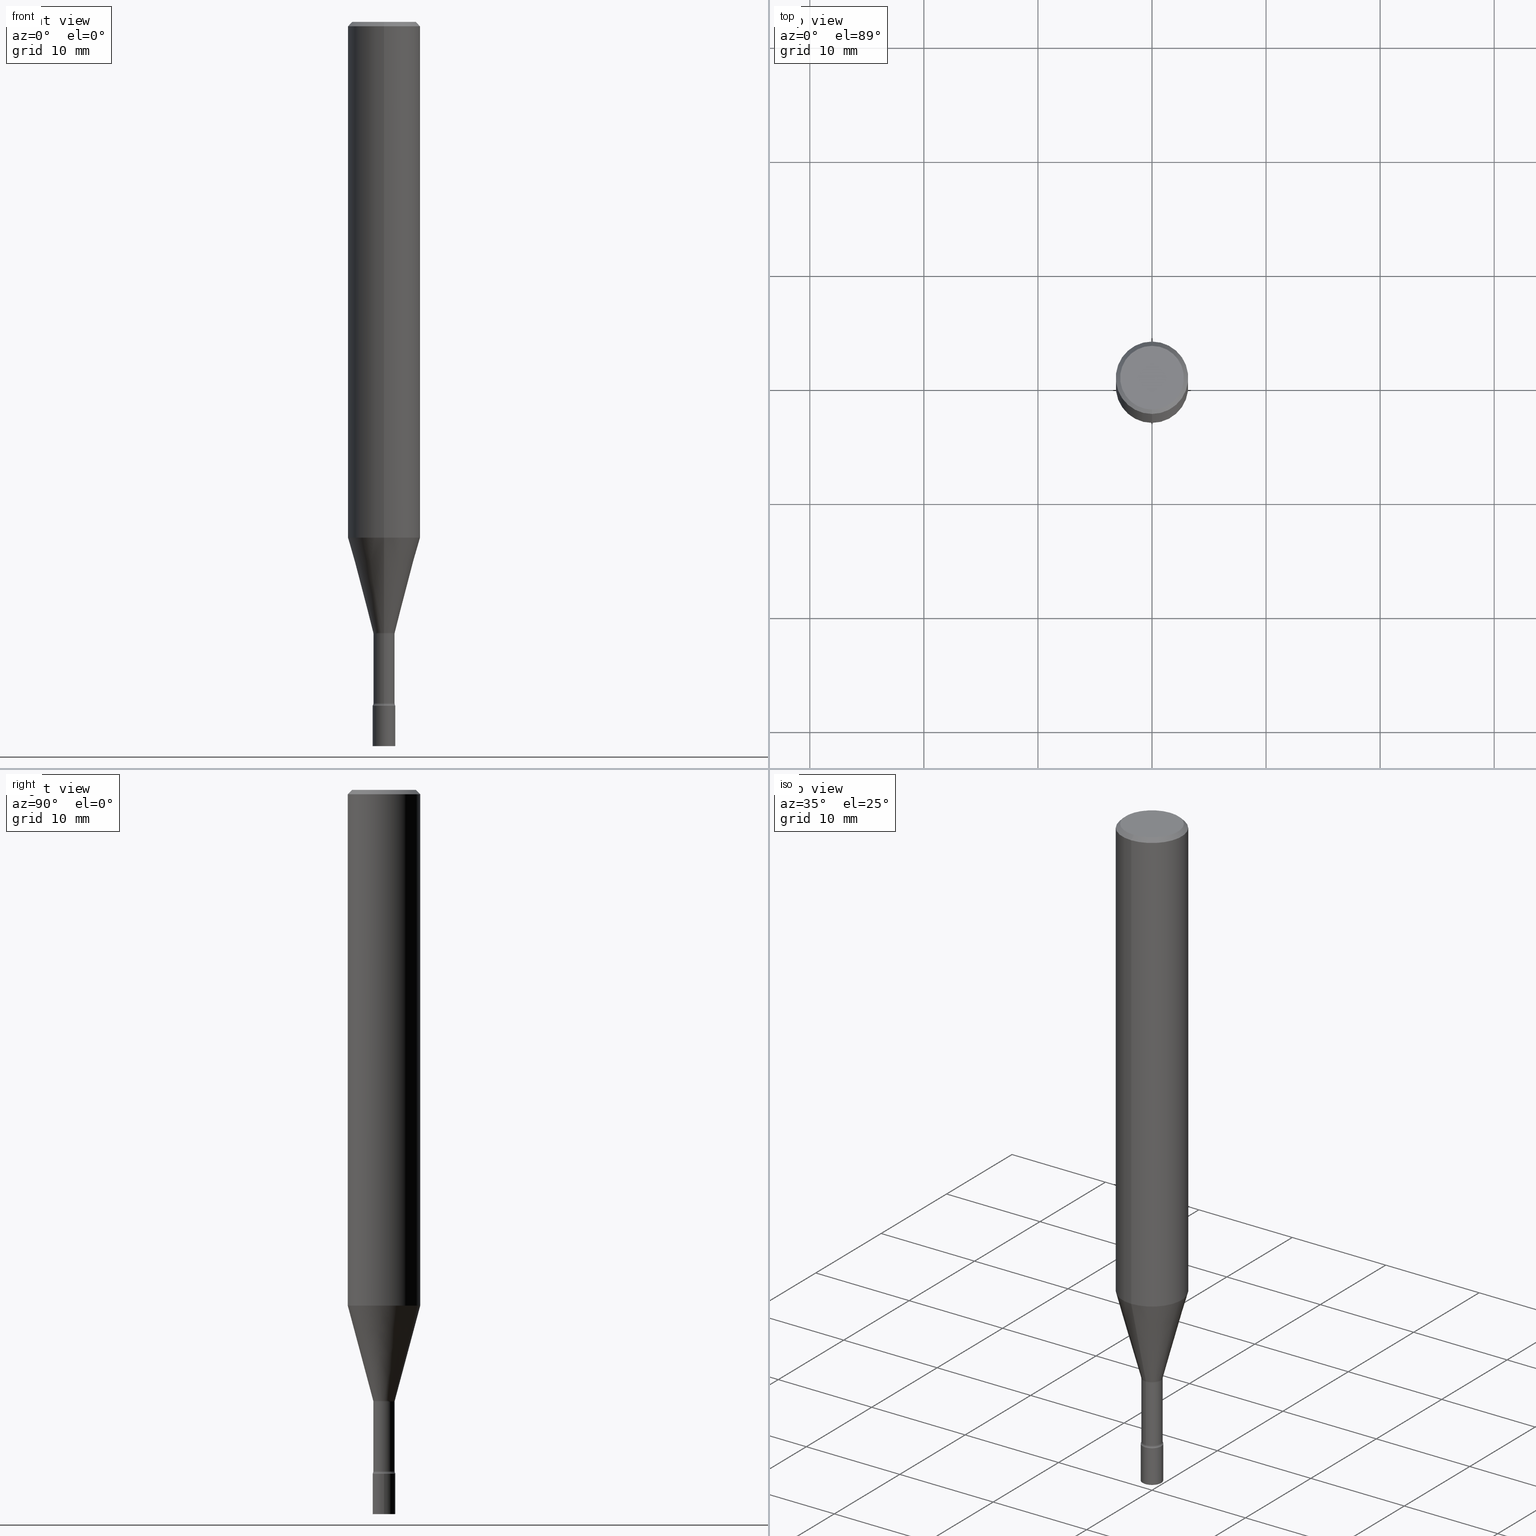
[diagram: canonical four-view strip — front | top / right | iso, engineering-drawing reading convention]
A machine part, canonical four-view strip (front | top / right | iso — engineering-drawing reading convention). The complete STEP part file that produces these views, byte-faithful:
ISO-10303-21;
HEADER;
FILE_DESCRIPTION (( 'STEP AP203' ),
    '1' );
FILE_NAME ('05290.STEP',
    '2024-03-08T23:11:32',
    ( '' ),
    ( '' ),
    'SwSTEP 2.0',
    'SolidWorks 2023',
    '' );
FILE_SCHEMA (( 'CONFIG_CONTROL_DESIGN' ));
ENDSEC;

DATA;
#1 = CARTESIAN_POINT ( 'NONE',  ( -8.061085147381547495E-16, -0.1100000000000000283, 3.706293315689109657E-16 ) ) ;
#2 = ORIENTED_EDGE ( 'NONE', *, *, #440, .T. ) ;
#3 = CARTESIAN_POINT ( 'NONE',  ( 6.113672015462842613E-29, -8.728703347107864943E-15, -2.500000000000000000 ) ) ;
#4 = CIRCLE ( 'NONE', #475, 0.1250000000000000000 ) ;
#5 = DIRECTION ( 'NONE',  ( 1.000000000000000000, -6.982962677686265922E-15, 4.876176775795935793E-29 ) ) ;
#6 = FACE_OUTER_BOUND ( 'NONE', #364, .T. ) ;
#7 = FACE_OUTER_BOUND ( 'NONE', #136, .T. ) ;
#8 = AXIS2_PLACEMENT_3D ( 'NONE', #391, #24, #192 ) ;
#9 = LENGTH_MEASURE_WITH_UNIT ( LENGTH_MEASURE( 0.02539999999999999897 ), #216 );
#10 = APPROVAL ( #389, 'UNSPECIFIED' ) ;
#11 = DATE_AND_TIME ( #457, #107 ) ;
#12 = DIRECTION ( 'NONE',  ( -2.445468806185136597E-29, 3.491481338843145583E-15, 1.000000000000000000 ) ) ;
#13 = APPLICATION_CONTEXT ( 'configuration controlled 3d designs of mechanical parts and assemblies' ) ;
#14 = DIRECTION ( 'NONE',  ( -2.445349781310830776E-29, 3.491651789237625811E-15, 1.000000000000000000 ) ) ;
#15 = ORIENTED_EDGE ( 'NONE', *, *, #284, .F. ) ;
#16 = DATE_AND_TIME ( #55, #159 ) ;
#17 = DIRECTION ( 'NONE',  ( 1.000000000000000000, -6.982962677686266711E-15, 0.000000000000000000 ) ) ;
#18 = EDGE_CURVE ( 'NONE', #171, #92, #329, .T. ) ;
#19 = CONICAL_SURFACE ( 'NONE', #49, 0.03721111260566398182, 0.2617993877991500740 ) ;
#20 = APPROVAL_DATE_TIME ( #11, #156 ) ;
#21 = AXIS2_PLACEMENT_3D ( 'NONE', #476, #283, #436 ) ;
#22 = CARTESIAN_POINT ( 'NONE',  ( 2.691180611691956727E-16, 0.03669999999999181556, -2.351939137763241483 ) ) ;
#23 = ORIENTED_EDGE ( 'NONE', *, *, #340, .F. ) ;
#24 = DIRECTION ( 'NONE',  ( -2.445349781310831056E-29, 3.491651789237626205E-15, 1.000000000000000000 ) ) ;
#25 = ORIENTED_EDGE ( 'NONE', *, *, #47, .F. ) ;
#26 = MANIFOLD_SOLID_BREP ( 'Body-Move/Copy2[1]', #316 ) ;
#27 = DIRECTION ( 'NONE',  ( -6.982962677686265922E-15, -1.000000000000000000, 3.491651789237625811E-15 ) ) ;
#28 = CLOSED_SHELL ( 'NONE', ( #410, #151, #29, #72, #125, #109, #89, #46, #505, #166, #465, #420, #190, #260 ) ) ;
#29 = ADVANCED_FACE ( 'NONE', ( #205 ), #158, .F. ) ;
#30 = APPROVAL_PERSON_ORGANIZATION ( #315, #156, #98 ) ;
#31 = EDGE_LOOP ( 'NONE', ( #378, #494, #344, #119 ) ) ;
#32 = DIRECTION ( 'NONE',  ( -2.445349781310831056E-29, 3.491651789237626205E-15, 1.000000000000000000 ) ) ;
#33 = DIRECTION ( 'NONE',  ( -2.445349781310831056E-29, 3.491651789237626205E-15, 1.000000000000000000 ) ) ;
#34 = CARTESIAN_POINT ( 'NONE',  ( 4.353847260578623732E-29, -6.216746043307386729E-15, -1.780459913691669227 ) ) ;
#35 = EDGE_CURVE ( 'NONE', #282, #53, #41, .T. ) ;
#36 = DIRECTION ( 'NONE',  ( -2.445349781310831056E-29, 3.491651789237626205E-15, 1.000000000000000000 ) ) ;
#37 = CIRCLE ( 'NONE', #366, 0.01500000000000002720 ) ;
#38 = CC_DESIGN_APPROVAL ( #128, ( #406 ) ) ;
#39 = DIRECTION ( 'NONE',  ( -6.982962677686265922E-15, -1.000000000000000000, 0.000000000000000000 ) ) ;
#40 = DIRECTION ( 'NONE',  ( -2.445468806185136597E-29, 3.491481338843145583E-15, 1.000000000000000000 ) ) ;
#41 = LINE ( 'NONE', #338, #296 ) ;
#42 = LINE ( 'NONE', #290, #318 ) ;
#43 = CIRCLE ( 'NONE', #346, 0.01500000000000000291 ) ;
#44 = DIRECTION ( 'NONE',  ( -2.445349781310831056E-29, 3.491651789237626205E-15, 1.000000000000000000 ) ) ;
#45 = ORIENTED_EDGE ( 'NONE', *, *, #170, .F. ) ;
#46 = ADVANCED_FACE ( 'NONE', ( #7 ), #214, .T. ) ;
#47 = EDGE_CURVE ( 'NONE', #358, #518, #460, .T. ) ;
#48 = DIRECTION ( 'NONE',  ( -2.445349781310831056E-29, 3.491651789237626205E-15, 1.000000000000000000 ) ) ;
#49 = AXIS2_PLACEMENT_3D ( 'NONE', #496, #48, #502 ) ;
#50 = ORIENTED_EDGE ( 'NONE', *, *, #442, .T. ) ;
#51 = AXIS2_PLACEMENT_3D ( 'NONE', #213, #211, #204 ) ;
#52 = PERSON_AND_ORGANIZATION ( #212, #85 ) ;
#53 = VERTEX_POINT ( 'NONE', #99 ) ;
#54 = ORIENTED_EDGE ( 'NONE', *, *, #115, .F. ) ;
#55 = CALENDAR_DATE ( 2024, 8, 3 ) ;
#56 = CARTESIAN_POINT ( 'NONE',  ( 6.113672015462842613E-29, -8.728703347107864943E-15, -2.500000000000000000 ) ) ;
#57 = CC_DESIGN_DATE_AND_TIME_ASSIGNMENT ( #306, #263, ( #333 ) ) ;
#58 = EDGE_LOOP ( 'NONE', ( #507, #148, #178, #375 ) ) ;
#59 = ORIENTED_EDGE ( 'NONE', *, *, #115, .T. ) ;
#60 = VECTOR ( 'NONE', #352, 39.37007874015748854 ) ;
#61 = FACE_OUTER_BOUND ( 'NONE', #317, .T. ) ;
#62 = DIRECTION ( 'NONE',  ( -6.982962677686265922E-15, -1.000000000000000000, 0.000000000000000000 ) ) ;
#63 = MECHANICAL_CONTEXT ( 'NONE', #13, 'mechanical' ) ;
#64 = LINE ( 'NONE', #483, #60 ) ;
#65 = PRODUCT_RELATED_PRODUCT_CATEGORY ( 'detail', '', ( #191 ) ) ;
#66 = DIRECTION ( 'NONE',  ( 2.438088387897960049E-29, -3.491481338843145188E-15, -1.000000000000000000 ) ) ;
#67 = CARTESIAN_POINT ( 'NONE',  ( -2.726846925635909341E-16, -0.03905000000000823784, -2.359999999999999876 ) ) ;
#68 = AXIS2_PLACEMENT_3D ( 'NONE', #326, #122, #376 ) ;
#69 = DIRECTION ( 'NONE',  ( -6.982962677686267499E-15, -1.000000000000000000, 0.000000000000000000 ) ) ;
#70 = CARTESIAN_POINT ( 'NONE',  ( 0.000000000000000000, 0.000000000000000000, 0.000000000000000000 ) ) ;
#71 = DIRECTION ( 'NONE',  ( 4.937700262164543309E-15, 0.7071067811865444641, -0.7071067811865505703 ) ) ;
#72 = ADVANCED_FACE ( 'NONE', ( #226 ), #473, .T. ) ;
#73 = DIRECTION ( 'NONE',  ( -2.445349781310831056E-29, 3.491651789237626205E-15, 1.000000000000000000 ) ) ;
#74 = DIRECTION ( 'NONE',  ( -6.982962677686265922E-15, -1.000000000000000000, 3.491651789237626205E-15 ) ) ;
#75 = AXIS2_PLACEMENT_3D ( 'NONE', #429, #314, #62 ) ;
#76 = CONICAL_SURFACE ( 'NONE', #153, 0.1250000000000000000, 0.7853981633974473908 ) ;
#77 = FACE_OUTER_BOUND ( 'NONE', #515, .T. ) ;
#78 = CARTESIAN_POINT ( 'NONE',  ( 0.03905000000000000138, -9.001388039671514055E-15, -2.500000000000000000 ) ) ;
#79 = EDGE_CURVE ( 'NONE', #385, #282, #438, .T. ) ;
#80 = PLANE ( 'NONE',  #279 ) ;
#81 = CYLINDRICAL_SURFACE ( 'NONE', #217, 0.03670000000000001733 ) ;
#82 = DIRECTION ( 'NONE',  ( 6.982962677686265922E-15, 1.000000000000000000, -3.500180241882337261E-15 ) ) ;
#83 = CARTESIAN_POINT ( 'NONE',  ( 5.751593795445973878E-29, -8.211751609595195115E-15, -2.351939137763241483 ) ) ;
#84 = AXIS2_PLACEMENT_3D ( 'NONE', #264, #492, #416 ) ;
#85 = ORGANIZATION ( 'UNSPECIFIED', 'UNSPECIFIED', '' ) ;
#86 = PRODUCT_DEFINITION_FORMATION_WITH_SPECIFIED_SOURCE ( 'ANY', '', #191, .NOT_KNOWN. ) ;
#87 = APPLICATION_PROTOCOL_DEFINITION ( 'international standard', 'config_control_design', 1994, #13 ) ;
#88 = CARTESIAN_POINT ( 'NONE',  ( 5.155023538228511633E-29, -7.360724955743956693E-15, -2.108092501787273143 ) ) ;
#89 = ADVANCED_FACE ( 'NONE', ( #384 ), #19, .T. ) ;
#90 = CARTESIAN_POINT ( 'NONE',  ( 5.751313856185726138E-29, -8.212152498549022381E-15, -2.351939137763241483 ) ) ;
#91 = DIRECTION ( 'NONE',  ( -2.445468806185136597E-29, 3.491481338843145583E-15, 1.000000000000000000 ) ) ;
#92 = VERTEX_POINT ( 'NONE', #267 ) ;
#93 = PERSON_AND_ORGANIZATION_ROLE ( 'design_supplier' ) ;
#94 = FACE_OUTER_BOUND ( 'NONE', #304, .T. ) ;
#95 = VERTEX_POINT ( 'NONE', #22 ) ;
#96 = CIRCLE ( 'NONE', #131, 0.03905000000000000138 ) ;
#97 = CC_DESIGN_SECURITY_CLASSIFICATION ( #406, ( #86 ) ) ;
#98 = APPROVAL_ROLE ( '' ) ;
#99 = CARTESIAN_POINT ( 'NONE',  ( 0.03905000000000000138, -8.512580652233472546E-15, -2.359999999999999876 ) ) ;
#100 = VERTEX_POINT ( 'NONE', #135 ) ;
#101 = PERSON_AND_ORGANIZATION_ROLE ( 'design_owner' ) ;
#102 = EDGE_CURVE ( 'NONE', #358, #95, #286, .T. ) ;
#103 = DIRECTION ( 'NONE',  ( -6.982962677686265922E-15, -1.000000000000000000, 3.491651789237626205E-15 ) ) ;
#104 = ORIENTED_EDGE ( 'NONE', *, *, #311, .T. ) ;
#105 = PRODUCT_DEFINITION_SHAPE ( 'NONE', 'NONE',  #333 ) ;
#106 = AXIS2_PLACEMENT_3D ( 'NONE', #140, #459, #464 ) ;
#107 = LOCAL_TIME ( 18, 11, 32.00000000000000000, #380 ) ;
#108 = ORIENTED_EDGE ( 'NONE', *, *, #246, .F. ) ;
#109 = ADVANCED_FACE ( 'NONE', ( #449 ), #234, .T. ) ;
#110 = LINE ( 'NONE', #480, #308 ) ;
#111 = CARTESIAN_POINT ( 'NONE',  ( -3.610191704363283331E-16, -0.05170000000000738588, -2.111974787463811065 ) ) ;
#112 = CYLINDRICAL_SURFACE ( 'NONE', #404, 0.03670000000000001733 ) ;
#113 = ORIENTED_EDGE ( 'NONE', *, *, #486, .F. ) ;
#114 = VECTOR ( 'NONE', #120, 39.37007874015748143 ) ;
#115 = EDGE_CURVE ( 'NONE', #171, #395, #466, .T. ) ;
#116 = AXIS2_PLACEMENT_3D ( 'NONE', #419, #386, #495 ) ;
#117 = DIRECTION ( 'NONE',  ( -6.982962677686265922E-15, -1.000000000000000000, 4.370956789862821150E-15 ) ) ;
#118 = LINE ( 'NONE', #516, #114 ) ;
#119 = ORIENTED_EDGE ( 'NONE', *, *, #359, .F. ) ;
#120 = DIRECTION ( 'NONE',  ( -2.445468806185136877E-29, 3.491481338843145188E-15, 1.000000000000000000 ) ) ;
#121 = CARTESIAN_POINT ( 'NONE',  ( -0.03905000000000000138, -8.206832715074525647E-15, -2.500000000000000000 ) ) ;
#122 = DIRECTION ( 'NONE',  ( -2.445349781310831056E-29, 3.491651789237626205E-15, 1.000000000000000000 ) ) ;
#123 = DIRECTION ( 'NONE',  ( -2.445468806185136597E-29, 3.491481338843145583E-15, 1.000000000000000000 ) ) ;
#124 = DIRECTION ( 'NONE',  ( -6.982962677686265922E-15, -1.000000000000000000, 0.000000000000000000 ) ) ;
#125 = ADVANCED_FACE ( 'NONE', ( #61 ), #433, .T. ) ;
#126 = DIRECTION ( 'NONE',  ( 1.000000000000000000, -7.105427357601001070E-15, 4.926317595957382719E-29 ) ) ;
#127 = PLANE ( 'NONE',  #372 ) ;
#128 = APPROVAL ( #345, 'UNSPECIFIED' ) ;
#129 = DIRECTION ( 'NONE',  ( -6.982962677686265922E-15, -1.000000000000000000, 3.491651789237626205E-15 ) ) ;
#130 = AXIS2_PLACEMENT_3D ( 'NONE', #325, #194, #357 ) ;
#131 = AXIS2_PLACEMENT_3D ( 'NONE', #248, #350, #149 ) ;
#132 = VERTEX_POINT ( 'NONE', #353 ) ;
#133 = CARTESIAN_POINT ( 'NONE',  ( 0.000000000000000000, 0.000000000000000000, 0.000000000000000000 ) ) ;
#134 = DIRECTION ( 'NONE',  ( -2.445349781310831056E-29, 3.491651789237626205E-15, 1.000000000000000000 ) ) ;
#135 = CARTESIAN_POINT ( 'NONE',  ( 8.881784197001688169E-16, 0.1249999999999999306, -0.01500000000000045047 ) ) ;
#136 = EDGE_LOOP ( 'NONE', ( #269, #176, #2, #302 ) ) ;
#137 = CALENDAR_DATE ( 2024, 8, 3 ) ;
#138 = ORIENTED_EDGE ( 'NONE', *, *, #401, .T. ) ;
#139 = PERSON_AND_ORGANIZATION ( #212, #85 ) ;
#140 = CARTESIAN_POINT ( 'NONE',  ( 5.771025483893561158E-29, -8.240298222600798413E-15, -2.359999999999999876 ) ) ;
#141 = AXIS2_PLACEMENT_3D ( 'NONE', #511, #294, #124 ) ;
#142 = ORIENTED_EDGE ( 'NONE', *, *, #35, .F. ) ;
#143 = AXIS2_PLACEMENT_3D ( 'NONE', #415, #40, #257 ) ;
#144 = CALENDAR_DATE ( 2024, 8, 3 ) ;
#145 = ORIENTED_EDGE ( 'NONE', *, *, #440, .F. ) ;
#146 = CALENDAR_DATE ( 2024, 8, 3 ) ;
#147 = DIRECTION ( 'NONE',  ( -6.982962677686265133E-15, -1.000000000000000000, 0.000000000000000000 ) ) ;
#148 = ORIENTED_EDGE ( 'NONE', *, *, #102, .F. ) ;
#149 = DIRECTION ( 'NONE',  ( -6.982962677686265133E-15, -1.000000000000000000, 0.000000000000000000 ) ) ;
#150 = APPROVAL_DATE_TIME ( #16, #10 ) ;
#151 = ADVANCED_FACE ( 'NONE', ( #471 ), #112, .T. ) ;
#152 = ORIENTED_EDGE ( 'NONE', *, *, #250, .F. ) ;
#153 = AXIS2_PLACEMENT_3D ( 'NONE', #485, #445, #82 ) ;
#154 = DIRECTION ( 'NONE',  ( -6.982962677686265922E-15, -1.000000000000000000, 3.500180241882337261E-15 ) ) ;
#155 = DIRECTION ( 'NONE',  ( -4.851104656540959542E-15, -0.7071067811865493491, -0.7071067811865456854 ) ) ;
#156 = APPROVAL ( #504, 'UNSPECIFIED' ) ;
#157 = FACE_OUTER_BOUND ( 'NONE', #239, .T. ) ;
#158 = TOROIDAL_SURFACE ( 'NONE', #307, 0.05170000000000003065, 0.01500000000000000291 ) ;
#159 = LOCAL_TIME ( 18, 11, 32.00000000000000000, #259 ) ;
#160 = LINE ( 'NONE', #517, #397 ) ;
#161 = ORIENTED_EDGE ( 'NONE', *, *, #209, .F. ) ;
#162 = ORIENTED_EDGE ( 'NONE', *, *, #514, .F. ) ;
#163 = CARTESIAN_POINT ( 'NONE',  ( 5.164517084658619251E-29, -7.374280545472771728E-15, -2.111974787463811065 ) ) ;
#164 = DIRECTION ( 'NONE',  ( -2.445349781310831056E-29, 3.491651789237626205E-15, 1.000000000000000000 ) ) ;
#165 = DIRECTION ( 'NONE',  ( -2.445349781310830776E-29, 3.491651789237625811E-15, 1.000000000000000000 ) ) ;
#166 = ADVANCED_FACE ( 'NONE', ( #198 ), #80, .F. ) ;
#167 = DIRECTION ( 'NONE',  ( -2.445468806185136597E-29, 3.491481338843145583E-15, 1.000000000000000000 ) ) ;
#168 = AXIS2_PLACEMENT_3D ( 'NONE', #245, #73, #39 ) ;
#169 = CYLINDRICAL_SURFACE ( 'NONE', #272, 0.03905000000000000138 ) ;
#170 = EDGE_CURVE ( 'NONE', #358, #193, #43, .T. ) ;
#171 = VERTEX_POINT ( 'NONE', #478 ) ;
#172 =( NAMED_UNIT ( * ) SI_UNIT ( $, .STERADIAN. ) SOLID_ANGLE_UNIT ( ) );
#173 = VECTOR ( 'NONE', #393, 39.37007874015748143 ) ;
#174 = TOROIDAL_SURFACE ( 'NONE', #509, 0.05170000000000000984, 0.01500000000000002720 ) ;
#175 = LOCAL_TIME ( 18, 11, 32.00000000000000000, #343 ) ;
#176 = ORIENTED_EDGE ( 'NONE', *, *, #359, .T. ) ;
#177 = ORIENTED_EDGE ( 'NONE', *, *, #182, .T. ) ;
#178 = ORIENTED_EDGE ( 'NONE', *, *, #170, .T. ) ;
#179 = SECURITY_CLASSIFICATION_LEVEL ( 'unclassified' ) ;
#180 = DIRECTION ( 'NONE',  ( 1.000000000000000000, -6.982962677686266711E-15, 4.876176775795935232E-29 ) ) ;
#181 = VERTEX_POINT ( 'NONE', #490 ) ;
#182 = EDGE_CURVE ( 'NONE', #385, #305, #118, .T. ) ;
#183 = DATE_TIME_ROLE ( 'classification_date' ) ;
#184 = CIRCLE ( 'NONE', #75, 0.03721111260566398182 ) ;
#185 = VERTEX_POINT ( 'NONE', #199 ) ;
#186 = CIRCLE ( 'NONE', #168, 0.03670000000000000345 ) ;
#187 = SHAPE_DEFINITION_REPRESENTATION ( #105, #253 ) ;
#188 = LINE ( 'NONE', #501, #405 ) ;
#189 = EDGE_LOOP ( 'NONE', ( #54, #262, #396, #349 ) ) ;
#190 = ADVANCED_FACE ( 'NONE', ( #295 ), #81, .T. ) ;
#191 = PRODUCT ( '05290', '05290', '', ( #63 ) ) ;
#192 = DIRECTION ( 'NONE',  ( -6.982962677686265922E-15, -1.000000000000000000, 3.491651789237626205E-15 ) ) ;
#193 = VERTEX_POINT ( 'NONE', #67 ) ;
#194 = DIRECTION ( 'NONE',  ( -2.445349781310831056E-29, 3.491651789237626205E-15, 1.000000000000000000 ) ) ;
#195 = VECTOR ( 'NONE', #14, 39.37007874015748143 ) ;
#196 =( GEOMETRIC_REPRESENTATION_CONTEXT ( 3 ) GLOBAL_UNCERTAINTY_ASSIGNED_CONTEXT ( ( #327 ) ) GLOBAL_UNIT_ASSIGNED_CONTEXT ( ( #289, #413, #172 ) ) REPRESENTATION_CONTEXT ( 'NONE', 'WORKASPACE' ) );
#197 = EDGE_LOOP ( 'NONE', ( #388, #355 ) ) ;
#198 = FACE_OUTER_BOUND ( 'NONE', #197, .T. ) ;
#199 = CARTESIAN_POINT ( 'NONE',  ( 8.204981146281365554E-16, 0.1100000000000000283, -3.975340620633669494E-16 ) ) ;
#200 = DIRECTION ( 'NONE',  ( -6.982962677686265922E-15, -1.000000000000000000, 4.370956789862821150E-15 ) ) ;
#201 = AXIS2_PLACEMENT_3D ( 'NONE', #281, #66, #470 ) ;
#202 = EDGE_CURVE ( 'NONE', #92, #171, #184, .T. ) ;
#203 = FACE_OUTER_BOUND ( 'NONE', #58, .T. ) ;
#204 = DIRECTION ( 'NONE',  ( -6.982962677686265922E-15, -1.000000000000000000, 3.491651789237625811E-15 ) ) ;
#205 = FACE_OUTER_BOUND ( 'NONE', #233, .T. ) ;
#206 = AXIS2_PLACEMENT_3D ( 'NONE', #513, #362, #276 ) ;
#207 = DESIGN_CONTEXT ( 'detailed design', #437, 'design' ) ;
#208 = ORIENTED_EDGE ( 'NONE', *, *, #182, .F. ) ;
#209 = EDGE_CURVE ( 'NONE', #95, #395, #409, .T. ) ;
#210 = DIMENSIONAL_EXPONENTS ( 1.000000000000000000, 0.000000000000000000, 0.000000000000000000, 0.000000000000000000, 0.000000000000000000, 0.000000000000000000, 0.000000000000000000 ) ;
#211 = DIRECTION ( 'NONE',  ( -2.445349781310831056E-29, 3.491651789237625811E-15, 1.000000000000000000 ) ) ;
#212 = PERSON ( 'UNSPECIFIED', 'UNSPECIFIED', 'UNSPECIFIED', ('UNSPECIFIED'), ('UNSPECIFIED'), ('UNSPECIFIED') ) ;
#213 = CARTESIAN_POINT ( 'NONE',  ( 2.726846925637064037E-16, 0.03904999999999175797, -2.359999999999999876 ) ) ;
#214 = CYLINDRICAL_SURFACE ( 'NONE', #243, 0.1250000000000000000 ) ;
#215 = ORIENTED_EDGE ( 'NONE', *, *, #394, .F. ) ;
#216 =( LENGTH_UNIT ( ) NAMED_UNIT ( * ) SI_UNIT ( $, .METRE. ) );
#217 = AXIS2_PLACEMENT_3D ( 'NONE', #133, #33, #360 ) ;
#218 = AXIS2_PLACEMENT_3D ( 'NONE', #90, #134, #411 ) ;
#219 = ORIENTED_EDGE ( 'NONE', *, *, #401, .F. ) ;
#220 = COORDINATED_UNIVERSAL_TIME_OFFSET ( 5, 0, .BEHIND. ) ;
#221 = EDGE_LOOP ( 'NONE', ( #15, #417 ) ) ;
#222 = PERSON_AND_ORGANIZATION_ROLE ( 'creator' ) ;
#223 = CARTESIAN_POINT ( 'NONE',  ( -2.562747302710860916E-16, -0.03670000000000001733, 1.281436206650209465E-16 ) ) ;
#224 = ORIENTED_EDGE ( 'NONE', *, *, #250, .T. ) ;
#225 = PERSON_AND_ORGANIZATION ( #212, #85 ) ;
#226 = FACE_OUTER_BOUND ( 'NONE', #297, .T. ) ;
#227 = EDGE_LOOP ( 'NONE', ( #161, #450, #508, #339 ) ) ;
#228 = CC_DESIGN_PERSON_AND_ORGANIZATION_ASSIGNMENT ( #139, #101, ( #191 ) ) ;
#229 = TOROIDAL_SURFACE ( 'NONE', #68, 0.05170000000000003065, 0.01500000000000000291 ) ;
#230 = CARTESIAN_POINT ( 'NONE',  ( -0.03905000000000000138, -8.206832715074525647E-15, -2.359999999999999876 ) ) ;
#231 = APPROVAL_ROLE ( '' ) ;
#232 = DIRECTION ( 'NONE',  ( -6.982962677686265922E-15, -1.000000000000000000, 0.000000000000000000 ) ) ;
#233 = EDGE_LOOP ( 'NONE', ( #162, #50, #104, #45 ) ) ;
#234 = CONICAL_SURFACE ( 'NONE', #371, 0.03721111260566398182, 0.2617993877991500740 ) ;
#235 = AXIS2_PLACEMENT_3D ( 'NONE', #432, #319, #27 ) ;
#236 = DIRECTION ( 'NONE',  ( -2.445349781310831056E-29, 3.491651789237626205E-15, 1.000000000000000000 ) ) ;
#237 = DIRECTION ( 'NONE',  ( -2.445349781310831056E-29, 3.491651789237626205E-15, 1.000000000000000000 ) ) ;
#238 = CC_DESIGN_PERSON_AND_ORGANIZATION_ASSIGNMENT ( #270, #266, ( #406 ) ) ;
#239 = EDGE_LOOP ( 'NONE', ( #113, #477 ) ) ;
#240 = DIRECTION ( 'NONE',  ( -6.982962677686266711E-15, -1.000000000000000000, 0.000000000000000000 ) ) ;
#241 = CARTESIAN_POINT ( 'NONE',  ( 5.164768462192233884E-29, -7.373920558537116240E-15, -2.111974787463811065 ) ) ;
#242 = EDGE_CURVE ( 'NONE', #185, #421, #320, .T. ) ;
#243 = AXIS2_PLACEMENT_3D ( 'NONE', #381, #341, #103 ) ;
#244 = CIRCLE ( 'NONE', #491, 0.1250000000000000000 ) ;
#245 = CARTESIAN_POINT ( 'NONE',  ( 5.164517084658619251E-29, -7.374280545472771728E-15, -2.111974787463811065 ) ) ;
#246 = EDGE_CURVE ( 'NONE', #92, #181, #64, .T. ) ;
#247 = PLANE ( 'NONE',  #51 ) ;
#248 = CARTESIAN_POINT ( 'NONE',  ( 5.771025483893561158E-29, -8.240298222600798413E-15, -2.359999999999999876 ) ) ;
#249 = CARTESIAN_POINT ( 'NONE',  ( 3.289573841542240327E-46, -4.697097518496170610E-32, -1.345236524722799803E-17 ) ) ;
#250 = EDGE_CURVE ( 'NONE', #324, #100, #252, .T. ) ;
#251 = CARTESIAN_POINT ( 'NONE',  ( -2.562747302710343719E-16, -0.03670000000000737950, -2.111974787463811065 ) ) ;
#252 = CIRCLE ( 'NONE', #130, 0.1250000000000000000 ) ;
#253 = ADVANCED_BREP_SHAPE_REPRESENTATION ( '05290', ( #26, #379, #116 ), #196 ) ;
#254 = DIRECTION ( 'NONE',  ( -2.445349781310831056E-29, 3.491651789237626205E-15, 1.000000000000000000 ) ) ;
#255 = DIRECTION ( 'NONE',  ( -2.445349781310831056E-29, 3.491651789237626205E-15, 1.000000000000000000 ) ) ;
#256 = ORIENTED_EDGE ( 'NONE', *, *, #35, .T. ) ;
#257 = DIRECTION ( 'NONE',  ( 1.000000000000000000, -6.982962677686266711E-15, 4.876176775795935232E-29 ) ) ;
#258 = EDGE_CURVE ( 'NONE', #100, #324, #4, .T. ) ;
#259 = COORDINATED_UNIVERSAL_TIME_OFFSET ( 5, 0, .BEHIND. ) ;
#260 = ADVANCED_FACE ( 'NONE', ( #369 ), #174, .F. ) ;
#261 = AXIS2_PLACEMENT_3D ( 'NONE', #328, #123, #443 ) ;
#262 = ORIENTED_EDGE ( 'NONE', *, *, #202, .F. ) ;
#263 = DATE_TIME_ROLE ( 'creation_date' ) ;
#264 = CARTESIAN_POINT ( 'NONE',  ( 3.668024671966249089E-31, -5.237477683856444140E-17, -0.01500000000000001332 ) ) ;
#265 = ORIENTED_EDGE ( 'NONE', *, *, #18, .F. ) ;
#266 = PERSON_AND_ORGANIZATION_ROLE ( 'classification_officer' ) ;
#267 = CARTESIAN_POINT ( 'NONE',  ( -2.598438105204809611E-16, -0.03721111260567134399, -2.108092501787273143 ) ) ;
#268 = EDGE_CURVE ( 'NONE', #132, #100, #110, .T. ) ;
#269 = ORIENTED_EDGE ( 'NONE', *, *, #268, .F. ) ;
#270 = PERSON_AND_ORGANIZATION ( #212, #85 ) ;
#271 = CARTESIAN_POINT ( 'NONE',  ( 7.681258945454894762E-16, 0.1100000000000000283, -3.908078794397529781E-16 ) ) ;
#272 = AXIS2_PLACEMENT_3D ( 'NONE', #291, #12, #180 ) ;
#273 = APPROVAL_PERSON_ORGANIZATION ( #225, #128, #427 ) ;
#274 = EDGE_LOOP ( 'NONE', ( #462, #503, #461, #25 ) ) ;
#275 = DIRECTION ( 'NONE',  ( -1.000000000000000000, 6.982962677686265922E-15, -4.883557194083112340E-29 ) ) ;
#276 = DIRECTION ( 'NONE',  ( 7.105427357601001859E-15, 1.000000000000000000, 0.000000000000000000 ) ) ;
#277 = EDGE_CURVE ( 'NONE', #53, #305, #330, .T. ) ;
#278 = ORIENTED_EDGE ( 'NONE', *, *, #258, .T. ) ;
#279 = AXIS2_PLACEMENT_3D ( 'NONE', #271, #390, #488 ) ;
#280 = AXIS2_PLACEMENT_3D ( 'NONE', #34, #435, #200 ) ;
#281 = CARTESIAN_POINT ( 'NONE',  ( 2.726846925637098056E-16, 0.03904999999999127225, -2.500000000000000000 ) ) ;
#282 = VERTEX_POINT ( 'NONE', #78 ) ;
#283 = DIRECTION ( 'NONE',  ( -2.445468806185136597E-29, 3.491481338843145583E-15, 1.000000000000000000 ) ) ;
#284 = EDGE_CURVE ( 'NONE', #193, #382, #96, .T. ) ;
#285 = FACE_OUTER_BOUND ( 'NONE', #474, .T. ) ;
#286 = CIRCLE ( 'NONE', #456, 0.03670000000000003121 ) ;
#287 = CIRCLE ( 'NONE', #425, 0.01500000000000000291 ) ;
#288 = LOCAL_TIME ( 18, 11, 32.00000000000000000, #220 ) ;
#289 =( CONVERSION_BASED_UNIT ( 'INCH', #9 ) LENGTH_UNIT ( ) NAMED_UNIT ( #210 ) );
#290 = CARTESIAN_POINT ( 'NONE',  ( 2.644008575151078799E-16, 0.03721111260565662660, -2.108092501787273143 ) ) ;
#291 = CARTESIAN_POINT ( 'NONE',  ( 0.000000000000000000, 0.000000000000000000, 0.000000000000000000 ) ) ;
#292 = DIRECTION ( 'NONE',  ( -1.000000000000000000, 6.982962677686265922E-15, -4.883557194083112340E-29 ) ) ;
#293 = FACE_OUTER_BOUND ( 'NONE', #454, .T. ) ;
#294 = DIRECTION ( 'NONE',  ( -2.445349781310831056E-29, 3.491651789237626205E-15, 1.000000000000000000 ) ) ;
#295 = FACE_OUTER_BOUND ( 'NONE', #227, .T. ) ;
#296 = VECTOR ( 'NONE', #347, 39.37007874015748143 ) ;
#297 = EDGE_LOOP ( 'NONE', ( #428, #312, #224, #23 ) ) ;
#298 = ORIENTED_EDGE ( 'NONE', *, *, #373, .F. ) ;
#299 = DIRECTION ( 'NONE',  ( -6.982962677686265922E-15, -1.000000000000000000, 3.491651789237625811E-15 ) ) ;
#300 = DIRECTION ( 'NONE',  ( -2.445349781310831056E-29, 3.491651789237626205E-15, 1.000000000000000000 ) ) ;
#301 = ADVANCED_FACE ( 'NONE', ( #94 ), #169, .T. ) ;
#302 = ORIENTED_EDGE ( 'NONE', *, *, #258, .F. ) ;
#303 = PERSON_AND_ORGANIZATION_ROLE ( 'creator' ) ;
#304 = EDGE_LOOP ( 'NONE', ( #342, #177, #431, #142 ) ) ;
#305 = VERTEX_POINT ( 'NONE', #230 ) ;
#306 = DATE_AND_TIME ( #137, #288 ) ;
#307 = AXIS2_PLACEMENT_3D ( 'NONE', #83, #254, #129 ) ;
#308 = VECTOR ( 'NONE', #165, 39.37007874015748143 ) ;
#309 = ORIENTED_EDGE ( 'NONE', *, *, #242, .F. ) ;
#310 = APPLICATION_PROTOCOL_DEFINITION ( 'international standard', 'config_control_design', 1994, #437 ) ;
#311 = EDGE_CURVE ( 'NONE', #382, #193, #365, .T. ) ;
#312 = ORIENTED_EDGE ( 'NONE', *, *, #322, .T. ) ;
#313 = ORIENTED_EDGE ( 'NONE', *, *, #277, .T. ) ;
#314 = DIRECTION ( 'NONE',  ( -2.445349781310831056E-29, 3.491651789237626205E-15, 1.000000000000000000 ) ) ;
#315 = PERSON_AND_ORGANIZATION ( #212, #85 ) ;
#316 = CLOSED_SHELL ( 'NONE', ( #301, #481, #446, #363 ) ) ;
#317 = EDGE_LOOP ( 'NONE', ( #499, #423, #152, #145 ) ) ;
#318 = VECTOR ( 'NONE', #444, 39.37007874015748854 ) ;
#319 = DIRECTION ( 'NONE',  ( -2.445349781310831056E-29, 3.491651789237626205E-15, 1.000000000000000000 ) ) ;
#320 = CIRCLE ( 'NONE', #235, 0.1100000000000000283 ) ;
#321 = AXIS2_PLACEMENT_3D ( 'NONE', #241, #36, #74 ) ;
#322 = EDGE_CURVE ( 'NONE', #421, #324, #188, .T. ) ;
#323 = CARTESIAN_POINT ( 'NONE',  ( 2.607691840240143303E-16, 0.03669999999999262741, -2.111974787463811065 ) ) ;
#324 = VERTEX_POINT ( 'NONE', #367 ) ;
#325 = CARTESIAN_POINT ( 'NONE',  ( 3.668024671966249089E-31, -5.237477683856444140E-17, -0.01500000000000001332 ) ) ;
#326 = CARTESIAN_POINT ( 'NONE',  ( 5.751593795445973878E-29, -8.211751609595195115E-15, -2.351939137763241483 ) ) ;
#327 = UNCERTAINTY_MEASURE_WITH_UNIT (LENGTH_MEASURE( 1.000000000000000082E-05 ), #289, 'distance_accuracy_value', 'NONE');
#328 = CARTESIAN_POINT ( 'NONE',  ( 5.771306382596922099E-29, -8.239895959669823433E-15, -2.359999999999999876 ) ) ;
#329 = CIRCLE ( 'NONE', #141, 0.03721111260566398182 ) ;
#330 = CIRCLE ( 'NONE', #261, 0.03905000000000000138 ) ;
#331 = LOCAL_TIME ( 18, 11, 32.00000000000000000, #500 ) ;
#332 = DIRECTION ( 'NONE',  ( 1.000000000000000000, -6.982962677686266711E-15, 0.000000000000000000 ) ) ;
#333 = PRODUCT_DEFINITION ( 'UNKNOWN', '', #86, #207 ) ;
#334 = CARTESIAN_POINT ( 'NONE',  ( -8.728703347107832402E-16, -0.1250000000000000000, 4.364564736547032757E-16 ) ) ;
#335 = CARTESIAN_POINT ( 'NONE',  ( 5.771306382596922099E-29, -8.239895959669823433E-15, -2.359999999999999876 ) ) ;
#336 = AXIS2_PLACEMENT_3D ( 'NONE', #249, #44, #299 ) ;
#337 = CC_DESIGN_PERSON_AND_ORGANIZATION_ASSIGNMENT ( #52, #222, ( #333 ) ) ;
#338 = CARTESIAN_POINT ( 'NONE',  ( 0.03905000000000000138, -2.726846925636487182E-16, 1.904147030948312851E-30 ) ) ;
#339 = ORIENTED_EDGE ( 'NONE', *, *, #414, .F. ) ;
#340 = EDGE_CURVE ( 'NONE', #185, #100, #160, .T. ) ;
#341 = DIRECTION ( 'NONE',  ( -2.445349781310831056E-29, 3.491651789237626205E-15, 1.000000000000000000 ) ) ;
#342 = ORIENTED_EDGE ( 'NONE', *, *, #486, .T. ) ;
#343 = COORDINATED_UNIVERSAL_TIME_OFFSET ( 5, 0, .BEHIND. ) ;
#344 = ORIENTED_EDGE ( 'NONE', *, *, #246, .T. ) ;
#345 = APPROVAL_STATUS ( 'not_yet_approved' ) ;
#346 = AXIS2_PLACEMENT_3D ( 'NONE', #402, #292, #240 ) ;
#347 = DIRECTION ( 'NONE',  ( -2.445468806185136877E-29, 3.491481338843145188E-15, 1.000000000000000000 ) ) ;
#348 = CIRCLE ( 'NONE', #21, 0.03905000000000000138 ) ;
#349 = ORIENTED_EDGE ( 'NONE', *, *, #354, .T. ) ;
#350 = DIRECTION ( 'NONE',  ( -2.445349781310831056E-29, 3.491651789237626205E-15, 1.000000000000000000 ) ) ;
#351 = ORIENTED_EDGE ( 'NONE', *, *, #202, .T. ) ;
#352 = DIRECTION ( 'NONE',  ( -1.807323732225328562E-15, -0.2588190451025179639, 0.9659258262890690894 ) ) ;
#353 = CARTESIAN_POINT ( 'NONE',  ( 8.881784197001682253E-16, 0.1249999999999937550, -1.780459913691669671 ) ) ;
#354 = EDGE_CURVE ( 'NONE', #518, #395, #484, .T. ) ;
#355 = ORIENTED_EDGE ( 'NONE', *, *, #472, .T. ) ;
#356 = TOROIDAL_SURFACE ( 'NONE', #321, 0.05170000000000000984, 0.01500000000000002720 ) ;
#357 = DIRECTION ( 'NONE',  ( -6.982962677686265922E-15, -1.000000000000000000, 3.500180241882337261E-15 ) ) ;
#358 = VERTEX_POINT ( 'NONE', #403 ) ;
#359 = EDGE_CURVE ( 'NONE', #132, #181, #244, .T. ) ;
#360 = DIRECTION ( 'NONE',  ( -6.982962677686265922E-15, -1.000000000000000000, 3.491651789237626205E-15 ) ) ;
#361 = CARTESIAN_POINT ( 'NONE',  ( 2.774669383143768178E-16, 0.03904999999999175797, -2.359999999999999876 ) ) ;
#362 = DIRECTION ( 'NONE',  ( 1.000000000000000000, -7.105427357601001070E-15, 4.926317595957382719E-29 ) ) ;
#363 = ADVANCED_FACE ( 'NONE', ( #157 ), #430, .T. ) ;
#364 = EDGE_LOOP ( 'NONE', ( #468, #309, #497, #278 ) ) ;
#365 = CIRCLE ( 'NONE', #106, 0.03905000000000000138 ) ;
#366 = AXIS2_PLACEMENT_3D ( 'NONE', #111, #275, #69 ) ;
#367 = CARTESIAN_POINT ( 'NONE',  ( -8.728703347107828458E-16, -0.1250000000000000555, -0.01499999999999957617 ) ) ;
#368 = DIRECTION ( 'NONE',  ( -6.982962677686265922E-15, -1.000000000000000000, 3.491651789237626205E-15 ) ) ;
#369 = FACE_OUTER_BOUND ( 'NONE', #189, .T. ) ;
#370 = LINE ( 'NONE', #334, #412 ) ;
#371 = AXIS2_PLACEMENT_3D ( 'NONE', #88, #255, #232 ) ;
#372 = AXIS2_PLACEMENT_3D ( 'NONE', #335, #374, #5 ) ;
#373 = EDGE_CURVE ( 'NONE', #181, #132, #458, .T. ) ;
#374 = DIRECTION ( 'NONE',  ( -2.438088387897960049E-29, 3.491481338843145188E-15, 1.000000000000000000 ) ) ;
#375 = ORIENTED_EDGE ( 'NONE', *, *, #284, .T. ) ;
#376 = DIRECTION ( 'NONE',  ( -6.982962677686265922E-15, -1.000000000000000000, 3.491651789237626205E-15 ) ) ;
#377 = CIRCLE ( 'NONE', #519, 0.03905000000000000138 ) ;
#378 = ORIENTED_EDGE ( 'NONE', *, *, #520, .F. ) ;
#379 = MANIFOLD_SOLID_BREP ( 'Body-Move/Copy2[2]', #28 ) ;
#380 = COORDINATED_UNIVERSAL_TIME_OFFSET ( 5, 0, .BEHIND. ) ;
#381 = CARTESIAN_POINT ( 'NONE',  ( 0.000000000000000000, 0.000000000000000000, 0.000000000000000000 ) ) ;
#382 = VERTEX_POINT ( 'NONE', #361 ) ;
#383 = PERSON_AND_ORGANIZATION ( #212, #85 ) ;
#384 = FACE_OUTER_BOUND ( 'NONE', #31, .T. ) ;
#385 = VERTEX_POINT ( 'NONE', #121 ) ;
#386 = DIRECTION ( 'NONE',  ( 0.000000000000000000, 0.000000000000000000, 1.000000000000000000 ) ) ;
#387 = APPROVAL_PERSON_ORGANIZATION ( #424, #10, #231 ) ;
#388 = ORIENTED_EDGE ( 'NONE', *, *, #242, .T. ) ;
#389 = APPROVAL_STATUS ( 'not_yet_approved' ) ;
#390 = DIRECTION ( 'NONE',  ( 2.445349781310831056E-29, -3.491651789237625811E-15, -1.000000000000000000 ) ) ;
#391 = CARTESIAN_POINT ( 'NONE',  ( 0.000000000000000000, 0.000000000000000000, 0.000000000000000000 ) ) ;
#392 = ORIENTED_EDGE ( 'NONE', *, *, #414, .T. ) ;
#393 = DIRECTION ( 'NONE',  ( -2.445349781310830776E-29, 3.491651789237625811E-15, 1.000000000000000000 ) ) ;
#394 = EDGE_CURVE ( 'NONE', #92, #518, #37, .T. ) ;
#395 = VERTEX_POINT ( 'NONE', #323 ) ;
#396 = ORIENTED_EDGE ( 'NONE', *, *, #394, .T. ) ;
#397 = VECTOR ( 'NONE', #71, 39.37007874015748143 ) ;
#398 = CARTESIAN_POINT ( 'NONE',  ( 5.164768462192233884E-29, -7.373920558537116240E-15, -2.111974787463811065 ) ) ;
#399 = DIRECTION ( 'NONE',  ( -6.982962677686265922E-15, -1.000000000000000000, 3.491651789237626205E-15 ) ) ;
#400 = CC_DESIGN_DATE_AND_TIME_ASSIGNMENT ( #498, #183, ( #406 ) ) ;
#401 = EDGE_CURVE ( 'NONE', #305, #53, #348, .T. ) ;
#402 = CARTESIAN_POINT ( 'NONE',  ( -3.610191704363226632E-16, -0.05170000000000824630, -2.351939137763241039 ) ) ;
#403 = CARTESIAN_POINT ( 'NONE',  ( -2.562747302710286527E-16, -0.03670000000000824686, -2.351939137763241483 ) ) ;
#404 = AXIS2_PLACEMENT_3D ( 'NONE', #70, #237, #399 ) ;
#405 = VECTOR ( 'NONE', #155, 39.37007874015748143 ) ;
#406 = SECURITY_CLASSIFICATION ( '', '', #179 ) ;
#407 = CARTESIAN_POINT ( 'NONE',  ( 4.353847260578623732E-29, -6.216746043307386729E-15, -1.780459913691669227 ) ) ;
#408 = DIRECTION ( 'NONE',  ( 7.105427357601001859E-15, 1.000000000000000000, 0.000000000000000000 ) ) ;
#409 = LINE ( 'NONE', #469, #173 ) ;
#410 = ADVANCED_FACE ( 'NONE', ( #285 ), #356, .F. ) ;
#411 = DIRECTION ( 'NONE',  ( -6.982962677686265133E-15, -1.000000000000000000, 0.000000000000000000 ) ) ;
#412 = VECTOR ( 'NONE', #451, 39.37007874015748143 ) ;
#413 =( NAMED_UNIT ( * ) PLANE_ANGLE_UNIT ( ) SI_UNIT ( $, .RADIAN. ) );
#414 = EDGE_CURVE ( 'NONE', #395, #518, #186, .T. ) ;
#415 = CARTESIAN_POINT ( 'NONE',  ( 0.000000000000000000, 0.000000000000000000, 0.000000000000000000 ) ) ;
#416 = DIRECTION ( 'NONE',  ( 6.982962677686265922E-15, 1.000000000000000000, -3.500180241882337261E-15 ) ) ;
#417 = ORIENTED_EDGE ( 'NONE', *, *, #311, .F. ) ;
#418 = ORIENTED_EDGE ( 'NONE', *, *, #79, .T. ) ;
#419 = CARTESIAN_POINT ( 'NONE',  ( 0.000000000000000000, 0.000000000000000000, 0.000000000000000000 ) ) ;
#420 = ADVANCED_FACE ( 'NONE', ( #203 ), #229, .F. ) ;
#421 = VERTEX_POINT ( 'NONE', #1 ) ;
#422 = DATE_AND_TIME ( #144, #331 ) ;
#423 = ORIENTED_EDGE ( 'NONE', *, *, #268, .T. ) ;
#424 = PERSON_AND_ORGANIZATION ( #212, #85 ) ;
#425 = AXIS2_PLACEMENT_3D ( 'NONE', #489, #126, #408 ) ;
#426 = CC_DESIGN_PERSON_AND_ORGANIZATION_ASSIGNMENT ( #453, #93, ( #86 ) ) ;
#427 = APPROVAL_ROLE ( '' ) ;
#428 = ORIENTED_EDGE ( 'NONE', *, *, #472, .F. ) ;
#429 = CARTESIAN_POINT ( 'NONE',  ( 5.155023538228511633E-29, -7.360724955743956693E-15, -2.108092501787273143 ) ) ;
#430 = PLANE ( 'NONE',  #201 ) ;
#431 = ORIENTED_EDGE ( 'NONE', *, *, #277, .F. ) ;
#432 = CARTESIAN_POINT ( 'NONE',  ( 3.289573841542240327E-46, -4.697097518496170610E-32, -1.345236524722799803E-17 ) ) ;
#433 = CYLINDRICAL_SURFACE ( 'NONE', #8, 0.1250000000000000000 ) ;
#434 = CIRCLE ( 'NONE', #218, 0.03670000000000003121 ) ;
#435 = DIRECTION ( 'NONE',  ( -2.445349781310831056E-29, 3.491651789237626205E-15, 1.000000000000000000 ) ) ;
#436 = DIRECTION ( 'NONE',  ( 1.000000000000000000, -6.982962677686266711E-15, 0.000000000000000000 ) ) ;
#437 = APPLICATION_CONTEXT ( 'configuration controlled 3d designs of mechanical parts and assemblies' ) ;
#438 = CIRCLE ( 'NONE', #447, 0.03905000000000000138 ) ;
#439 = CIRCLE ( 'NONE', #336, 0.1100000000000000283 ) ;
#440 = EDGE_CURVE ( 'NONE', #181, #324, #370, .T. ) ;
#441 = FACE_OUTER_BOUND ( 'NONE', #221, .T. ) ;
#442 = EDGE_CURVE ( 'NONE', #95, #382, #287, .T. ) ;
#443 = DIRECTION ( 'NONE',  ( 1.000000000000000000, -6.982962677686266711E-15, 0.000000000000000000 ) ) ;
#444 = DIRECTION ( 'NONE',  ( 1.839019923739598738E-15, 0.2588190451025247363, 0.9659258262890673130 ) ) ;
#445 = DIRECTION ( 'NONE',  ( 2.445349781310831056E-29, -3.491651789237626205E-15, -1.000000000000000000 ) ) ;
#446 = ADVANCED_FACE ( 'NONE', ( #77 ), #487, .T. ) ;
#447 = AXIS2_PLACEMENT_3D ( 'NONE', #56, #91, #17 ) ;
#448 = CC_DESIGN_APPROVAL ( #10, ( #333 ) ) ;
#449 = FACE_OUTER_BOUND ( 'NONE', #452, .T. ) ;
#450 = ORIENTED_EDGE ( 'NONE', *, *, #514, .T. ) ;
#451 = DIRECTION ( 'NONE',  ( -2.445349781310830776E-29, 3.491651789237625811E-15, 1.000000000000000000 ) ) ;
#452 = EDGE_LOOP ( 'NONE', ( #351, #493, #298, #108 ) ) ;
#453 = PERSON_AND_ORGANIZATION ( #212, #85 ) ;
#454 = EDGE_LOOP ( 'NONE', ( #313, #138 ) ) ;
#455 = CC_DESIGN_PERSON_AND_ORGANIZATION_ASSIGNMENT ( #383, #303, ( #86 ) ) ;
#456 = AXIS2_PLACEMENT_3D ( 'NONE', #506, #300, #147 ) ;
#457 = CALENDAR_DATE ( 2024, 8, 3 ) ;
#458 = CIRCLE ( 'NONE', #280, 0.1250000000000000000 ) ;
#459 = DIRECTION ( 'NONE',  ( -2.445349781310831056E-29, 3.491651789237626205E-15, 1.000000000000000000 ) ) ;
#460 = LINE ( 'NONE', #223, #195 ) ;
#461 = ORIENTED_EDGE ( 'NONE', *, *, #354, .F. ) ;
#462 = ORIENTED_EDGE ( 'NONE', *, *, #102, .T. ) ;
#463 = APPROVAL_DATE_TIME ( #422, #128 ) ;
#464 = DIRECTION ( 'NONE',  ( -6.982962677686265133E-15, -1.000000000000000000, 0.000000000000000000 ) ) ;
#465 = ADVANCED_FACE ( 'NONE', ( #441 ), #247, .F. ) ;
#466 = CIRCLE ( 'NONE', #206, 0.01500000000000002720 ) ;
#467 = AXIS2_PLACEMENT_3D ( 'NONE', #163, #482, #479 ) ;
#468 = ORIENTED_EDGE ( 'NONE', *, *, #322, .F. ) ;
#469 = CARTESIAN_POINT ( 'NONE',  ( 2.607691840239568914E-16, 0.03670000000000001733, -1.281436206650209465E-16 ) ) ;
#470 = DIRECTION ( 'NONE',  ( -1.000000000000000000, 6.982962677686265922E-15, -4.876176775795935793E-29 ) ) ;
#471 = FACE_OUTER_BOUND ( 'NONE', #274, .T. ) ;
#472 = EDGE_CURVE ( 'NONE', #421, #185, #439, .T. ) ;
#473 = CONICAL_SURFACE ( 'NONE', #84, 0.1250000000000000000, 0.7853981633974473908 ) ;
#474 = EDGE_LOOP ( 'NONE', ( #265, #59, #392, #215 ) ) ;
#475 = AXIS2_PLACEMENT_3D ( 'NONE', #512, #164, #154 ) ;
#476 = CARTESIAN_POINT ( 'NONE',  ( 5.771306382596922099E-29, -8.239895959669823433E-15, -2.359999999999999876 ) ) ;
#477 = ORIENTED_EDGE ( 'NONE', *, *, #79, .F. ) ;
#478 = CARTESIAN_POINT ( 'NONE',  ( 5.762896386076385210E-16, 0.03721111260565662660, -2.108092501787273143 ) ) ;
#479 = DIRECTION ( 'NONE',  ( -6.982962677686265922E-15, -1.000000000000000000, 0.000000000000000000 ) ) ;
#480 = CARTESIAN_POINT ( 'NONE',  ( 8.881784197001251337E-16, 0.1250000000000000000, -4.364564736547032757E-16 ) ) ;
#481 = ADVANCED_FACE ( 'NONE', ( #293 ), #127, .T. ) ;
#482 = DIRECTION ( 'NONE',  ( -2.445349781310831056E-29, 3.491651789237626205E-15, 1.000000000000000000 ) ) ;
#483 = CARTESIAN_POINT ( 'NONE',  ( -2.598438105204809611E-16, -0.03721111260567134399, -2.108092501787273143 ) ) ;
#484 = CIRCLE ( 'NONE', #467, 0.03670000000000000345 ) ;
#485 = CARTESIAN_POINT ( 'NONE',  ( 3.668024671966249089E-31, -5.237477683856444140E-17, -0.01500000000000001332 ) ) ;
#486 = EDGE_CURVE ( 'NONE', #282, #385, #377, .T. ) ;
#487 = CYLINDRICAL_SURFACE ( 'NONE', #143, 0.03905000000000000138 ) ;
#488 = DIRECTION ( 'NONE',  ( 6.982962677686265922E-15, 1.000000000000000000, -3.491651789237625811E-15 ) ) ;
#489 = CARTESIAN_POINT ( 'NONE',  ( 3.673505943880295021E-16, 0.05169999999999182194, -2.351939137763241927 ) ) ;
#490 = CARTESIAN_POINT ( 'NONE',  ( -8.728703347107397543E-16, -0.1250000000000062450, -1.780459913691668561 ) ) ;
#491 = AXIS2_PLACEMENT_3D ( 'NONE', #407, #236, #117 ) ;
#492 = DIRECTION ( 'NONE',  ( 2.445349781310831056E-29, -3.491651789237626205E-15, -1.000000000000000000 ) ) ;
#493 = ORIENTED_EDGE ( 'NONE', *, *, #520, .T. ) ;
#494 = ORIENTED_EDGE ( 'NONE', *, *, #18, .T. ) ;
#495 = DIRECTION ( 'NONE',  ( 1.000000000000000000, 0.000000000000000000, 0.000000000000000000 ) ) ;
#496 = CARTESIAN_POINT ( 'NONE',  ( 5.155023538228511633E-29, -7.360724955743956693E-15, -2.108092501787273143 ) ) ;
#497 = ORIENTED_EDGE ( 'NONE', *, *, #340, .T. ) ;
#498 = DATE_AND_TIME ( #146, #175 ) ;
#499 = ORIENTED_EDGE ( 'NONE', *, *, #373, .T. ) ;
#500 = COORDINATED_UNIVERSAL_TIME_OFFSET ( 5, 0, .BEHIND. ) ;
#501 = CARTESIAN_POINT ( 'NONE',  ( -8.575622497214409523E-16, -0.1250000000000000555, -0.01499999999999957617 ) ) ;
#502 = DIRECTION ( 'NONE',  ( -6.982962677686265922E-15, -1.000000000000000000, 0.000000000000000000 ) ) ;
#503 = ORIENTED_EDGE ( 'NONE', *, *, #209, .T. ) ;
#504 = APPROVAL_STATUS ( 'not_yet_approved' ) ;
#505 = ADVANCED_FACE ( 'NONE', ( #6 ), #76, .T. ) ;
#506 = CARTESIAN_POINT ( 'NONE',  ( 5.751313856185726138E-29, -8.212152498549022381E-15, -2.351939137763241483 ) ) ;
#507 = ORIENTED_EDGE ( 'NONE', *, *, #442, .F. ) ;
#508 = ORIENTED_EDGE ( 'NONE', *, *, #47, .T. ) ;
#509 = AXIS2_PLACEMENT_3D ( 'NONE', #398, #32, #368 ) ;
#510 = CC_DESIGN_APPROVAL ( #156, ( #86 ) ) ;
#511 = CARTESIAN_POINT ( 'NONE',  ( 5.155023538228511633E-29, -7.360724955743956693E-15, -2.108092501787273143 ) ) ;
#512 = CARTESIAN_POINT ( 'NONE',  ( 3.668024671966249089E-31, -5.237477683856444140E-17, -0.01500000000000001332 ) ) ;
#513 = CARTESIAN_POINT ( 'NONE',  ( 3.673505943880233885E-16, 0.05169999999999263379, -2.111974787463811509 ) ) ;
#514 = EDGE_CURVE ( 'NONE', #95, #358, #434, .T. ) ;
#515 = EDGE_LOOP ( 'NONE', ( #208, #418, #256, #219 ) ) ;
#516 = CARTESIAN_POINT ( 'NONE',  ( -0.03905000000000000138, 2.774669383143191324E-16, -1.920844152744540637E-30 ) ) ;
#517 = CARTESIAN_POINT ( 'NONE',  ( 8.728703347107836346E-16, 0.1249999999999999445, -0.01500000000000045047 ) ) ;
#518 = VERTEX_POINT ( 'NONE', #251 ) ;
#519 = AXIS2_PLACEMENT_3D ( 'NONE', #3, #167, #332 ) ;
#520 = EDGE_CURVE ( 'NONE', #171, #132, #42, .T. ) ;
ENDSEC;
END-ISO-10303-21;
